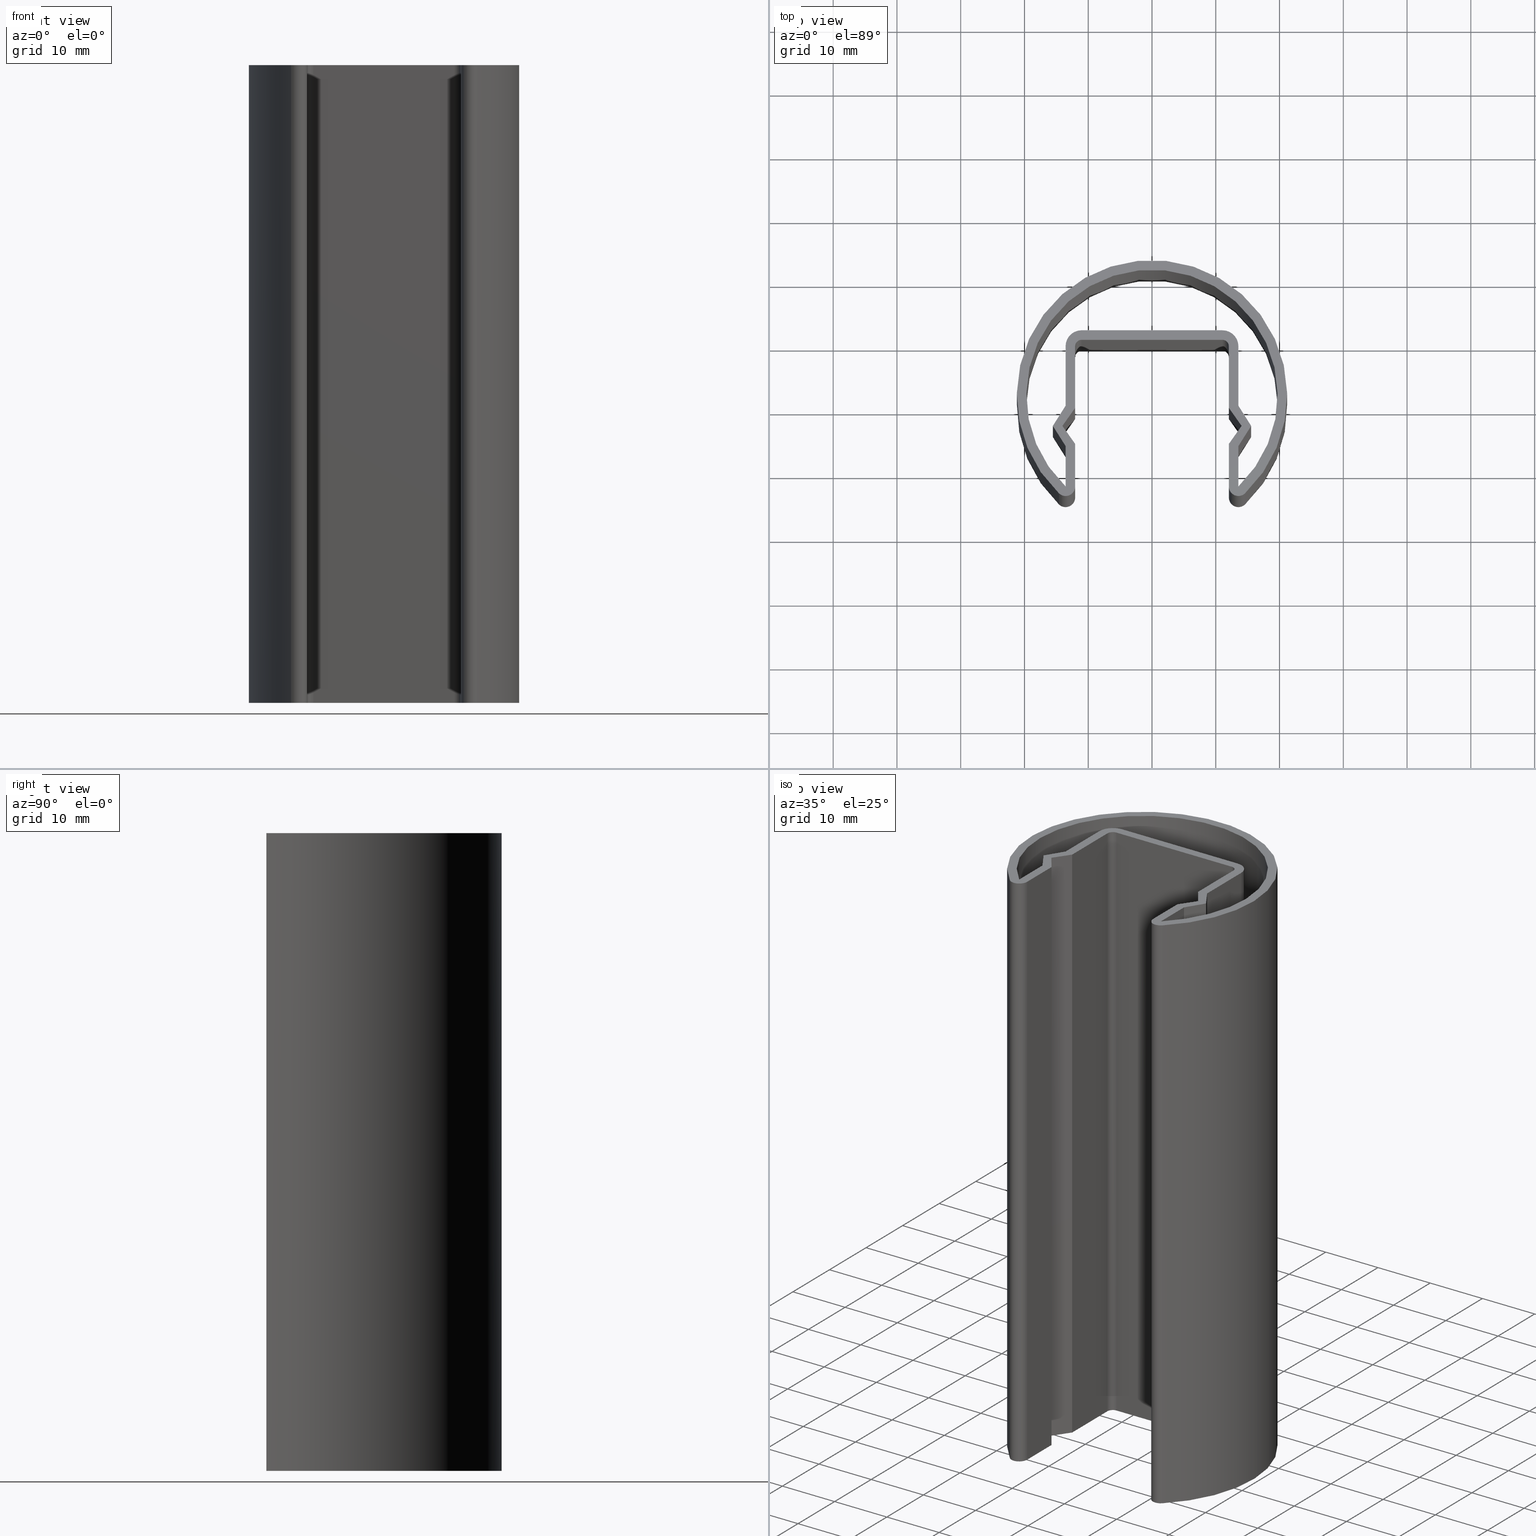
[diagram: canonical four-view strip — front | top / right | iso, engineering-drawing reading convention]
A machine part, canonical four-view strip (front | top / right | iso — engineering-drawing reading convention). The complete STEP part file that produces these views, byte-faithful:
ISO-10303-21;
HEADER;
/* Generated by software containing ST-Developer
 * from STEP Tools, Inc. (www.steptools.com) 
 */
/* OPTION: strings as raw bytes, not using required /X/ escapes */

FILE_DESCRIPTION(
/* description */ ('Unknown'),
/* implementation_level */ '2;1');

FILE_NAME(
/* name */ 'A000003_k',
/* time_stamp */ '2020-06-17T00:15:35+02:00',
/* author */ ('Unknown'),
/* organization */ ('Unknown'),
/* preprocessor_version */ 'ST-DEVELOPER v16.7',
/* originating_system */ 'DEX',
/* authorisation */ $);

FILE_SCHEMA (('CONFIG_CONTROL_DESIGN'));
ENDSEC;

DATA;
#10=PROPERTY_DEFINITION_REPRESENTATION(#14,#12);
#11=PROPERTY_DEFINITION_REPRESENTATION(#15,#13);
#12=REPRESENTATION('',(#16),#931);
#13=REPRESENTATION('',(#17),#931);
#14=PROPERTY_DEFINITION('pmi validation property','',#936);
#15=PROPERTY_DEFINITION('pmi validation property','',#936);
#16=VALUE_REPRESENTATION_ITEM('number of annotations',COUNT_MEASURE(0.));
#17=VALUE_REPRESENTATION_ITEM('number of views',COUNT_MEASURE(0.));
#18=SHAPE_REPRESENTATION_RELATIONSHIP('','',#573,#19);
#19=ADVANCED_BREP_SHAPE_REPRESENTATION('',(#571),#931);
#20=PLANE('',#578);
#21=PLANE('',#579);
#22=PLANE('',#580);
#23=PLANE('',#581);
#24=PLANE('',#585);
#25=PLANE('',#589);
#26=PLANE('',#590);
#27=PLANE('',#591);
#28=PLANE('',#592);
#29=PLANE('',#596);
#30=PLANE('',#597);
#31=PLANE('',#598);
#32=PLANE('',#599);
#33=PLANE('',#603);
#34=PLANE('',#607);
#35=PLANE('',#608);
#36=PLANE('',#609);
#37=PLANE('',#610);
#38=PLANE('',#617);
#39=PLANE('',#618);
#40=LINE('',#776,#102);
#41=LINE('',#780,#103);
#42=LINE('',#782,#104);
#43=LINE('',#784,#105);
#44=LINE('',#786,#106);
#45=LINE('',#788,#107);
#46=LINE('',#790,#108);
#47=LINE('',#792,#109);
#48=LINE('',#794,#110);
#49=LINE('',#796,#111);
#50=LINE('',#798,#112);
#51=LINE('',#800,#113);
#52=LINE('',#802,#114);
#53=LINE('',#804,#115);
#54=LINE('',#808,#116);
#55=LINE('',#812,#117);
#56=LINE('',#814,#118);
#57=LINE('',#816,#119);
#58=LINE('',#820,#120);
#59=LINE('',#824,#121);
#60=LINE('',#826,#122);
#61=LINE('',#828,#123);
#62=LINE('',#830,#124);
#63=LINE('',#832,#125);
#64=LINE('',#834,#126);
#65=LINE('',#836,#127);
#66=LINE('',#838,#128);
#67=LINE('',#840,#129);
#68=LINE('',#842,#130);
#69=LINE('',#844,#131);
#70=LINE('',#846,#132);
#71=LINE('',#850,#133);
#72=LINE('',#854,#134);
#73=LINE('',#857,#135);
#74=LINE('',#859,#136);
#75=LINE('',#861,#137);
#76=LINE('',#863,#138);
#77=LINE('',#865,#139);
#78=LINE('',#867,#140);
#79=LINE('',#869,#141);
#80=LINE('',#871,#142);
#81=LINE('',#873,#143);
#82=LINE('',#875,#144);
#83=LINE('',#877,#145);
#84=LINE('',#879,#146);
#85=LINE('',#883,#147);
#86=LINE('',#887,#148);
#87=LINE('',#889,#149);
#88=LINE('',#891,#150);
#89=LINE('',#895,#151);
#90=LINE('',#899,#152);
#91=LINE('',#901,#153);
#92=LINE('',#903,#154);
#93=LINE('',#905,#155);
#94=LINE('',#907,#156);
#95=LINE('',#909,#157);
#96=LINE('',#911,#158);
#97=LINE('',#913,#159);
#98=LINE('',#915,#160);
#99=LINE('',#917,#161);
#100=LINE('',#919,#162);
#101=LINE('',#921,#163);
#102=VECTOR('',#625,1000.);
#103=VECTOR('',#628,1000.);
#104=VECTOR('',#631,1000.);
#105=VECTOR('',#632,1000.);
#106=VECTOR('',#633,1000.);
#107=VECTOR('',#636,1000.);
#108=VECTOR('',#637,1000.);
#109=VECTOR('',#638,1000.);
#110=VECTOR('',#641,1000.);
#111=VECTOR('',#642,1000.);
#112=VECTOR('',#643,1000.);
#113=VECTOR('',#646,1000.);
#114=VECTOR('',#647,1000.);
#115=VECTOR('',#648,1000.);
#116=VECTOR('',#653,1000.);
#117=VECTOR('',#658,1000.);
#118=VECTOR('',#659,1000.);
#119=VECTOR('',#660,1000.);
#120=VECTOR('',#665,1000.);
#121=VECTOR('',#670,1000.);
#122=VECTOR('',#671,1000.);
#123=VECTOR('',#672,1000.);
#124=VECTOR('',#675,1000.);
#125=VECTOR('',#676,1000.);
#126=VECTOR('',#677,1000.);
#127=VECTOR('',#680,1000.);
#128=VECTOR('',#681,1000.);
#129=VECTOR('',#682,1000.);
#130=VECTOR('',#685,1000.);
#131=VECTOR('',#686,1000.);
#132=VECTOR('',#687,1000.);
#133=VECTOR('',#692,1000.);
#134=VECTOR('',#697,1000.);
#135=VECTOR('',#698,1000.);
#136=VECTOR('',#699,1000.);
#137=VECTOR('',#700,1000.);
#138=VECTOR('',#703,1000.);
#139=VECTOR('',#704,1000.);
#140=VECTOR('',#705,1000.);
#141=VECTOR('',#708,1000.);
#142=VECTOR('',#709,1000.);
#143=VECTOR('',#710,1000.);
#144=VECTOR('',#713,1000.);
#145=VECTOR('',#714,1000.);
#146=VECTOR('',#715,1000.);
#147=VECTOR('',#720,1000.);
#148=VECTOR('',#725,1000.);
#149=VECTOR('',#726,1000.);
#150=VECTOR('',#727,1000.);
#151=VECTOR('',#732,1000.);
#152=VECTOR('',#737,1000.);
#153=VECTOR('',#738,1000.);
#154=VECTOR('',#739,1000.);
#155=VECTOR('',#742,1000.);
#156=VECTOR('',#743,1000.);
#157=VECTOR('',#744,1000.);
#158=VECTOR('',#747,1000.);
#159=VECTOR('',#748,1000.);
#160=VECTOR('',#749,1000.);
#161=VECTOR('',#752,1000.);
#162=VECTOR('',#753,1000.);
#163=VECTOR('',#754,1000.);
#164=ORIENTED_EDGE('',*,*,#320,.T.);
#165=ORIENTED_EDGE('',*,*,#321,.F.);
#166=ORIENTED_EDGE('',*,*,#322,.F.);
#167=ORIENTED_EDGE('',*,*,#323,.T.);
#168=ORIENTED_EDGE('',*,*,#324,.T.);
#169=ORIENTED_EDGE('',*,*,#325,.F.);
#170=ORIENTED_EDGE('',*,*,#326,.F.);
#171=ORIENTED_EDGE('',*,*,#321,.T.);
#172=ORIENTED_EDGE('',*,*,#327,.T.);
#173=ORIENTED_EDGE('',*,*,#328,.F.);
#174=ORIENTED_EDGE('',*,*,#329,.F.);
#175=ORIENTED_EDGE('',*,*,#325,.T.);
#176=ORIENTED_EDGE('',*,*,#330,.T.);
#177=ORIENTED_EDGE('',*,*,#331,.F.);
#178=ORIENTED_EDGE('',*,*,#332,.F.);
#179=ORIENTED_EDGE('',*,*,#328,.T.);
#180=ORIENTED_EDGE('',*,*,#333,.T.);
#181=ORIENTED_EDGE('',*,*,#334,.F.);
#182=ORIENTED_EDGE('',*,*,#335,.F.);
#183=ORIENTED_EDGE('',*,*,#331,.T.);
#184=ORIENTED_EDGE('',*,*,#336,.T.);
#185=ORIENTED_EDGE('',*,*,#337,.F.);
#186=ORIENTED_EDGE('',*,*,#338,.F.);
#187=ORIENTED_EDGE('',*,*,#334,.T.);
#188=ORIENTED_EDGE('',*,*,#339,.T.);
#189=ORIENTED_EDGE('',*,*,#340,.F.);
#190=ORIENTED_EDGE('',*,*,#341,.F.);
#191=ORIENTED_EDGE('',*,*,#337,.T.);
#192=ORIENTED_EDGE('',*,*,#342,.T.);
#193=ORIENTED_EDGE('',*,*,#343,.F.);
#194=ORIENTED_EDGE('',*,*,#344,.F.);
#195=ORIENTED_EDGE('',*,*,#340,.T.);
#196=ORIENTED_EDGE('',*,*,#345,.T.);
#197=ORIENTED_EDGE('',*,*,#346,.F.);
#198=ORIENTED_EDGE('',*,*,#347,.F.);
#199=ORIENTED_EDGE('',*,*,#343,.T.);
#200=ORIENTED_EDGE('',*,*,#348,.T.);
#201=ORIENTED_EDGE('',*,*,#349,.F.);
#202=ORIENTED_EDGE('',*,*,#350,.F.);
#203=ORIENTED_EDGE('',*,*,#346,.T.);
#204=ORIENTED_EDGE('',*,*,#351,.T.);
#205=ORIENTED_EDGE('',*,*,#352,.F.);
#206=ORIENTED_EDGE('',*,*,#353,.F.);
#207=ORIENTED_EDGE('',*,*,#349,.T.);
#208=ORIENTED_EDGE('',*,*,#354,.T.);
#209=ORIENTED_EDGE('',*,*,#355,.F.);
#210=ORIENTED_EDGE('',*,*,#356,.F.);
#211=ORIENTED_EDGE('',*,*,#352,.T.);
#212=ORIENTED_EDGE('',*,*,#357,.T.);
#213=ORIENTED_EDGE('',*,*,#358,.F.);
#214=ORIENTED_EDGE('',*,*,#359,.F.);
#215=ORIENTED_EDGE('',*,*,#355,.T.);
#216=ORIENTED_EDGE('',*,*,#360,.F.);
#217=ORIENTED_EDGE('',*,*,#361,.F.);
#218=ORIENTED_EDGE('',*,*,#362,.T.);
#219=ORIENTED_EDGE('',*,*,#363,.T.);
#220=ORIENTED_EDGE('',*,*,#364,.F.);
#221=ORIENTED_EDGE('',*,*,#365,.F.);
#222=ORIENTED_EDGE('',*,*,#366,.T.);
#223=ORIENTED_EDGE('',*,*,#361,.T.);
#224=ORIENTED_EDGE('',*,*,#367,.F.);
#225=ORIENTED_EDGE('',*,*,#368,.F.);
#226=ORIENTED_EDGE('',*,*,#369,.T.);
#227=ORIENTED_EDGE('',*,*,#365,.T.);
#228=ORIENTED_EDGE('',*,*,#370,.F.);
#229=ORIENTED_EDGE('',*,*,#371,.F.);
#230=ORIENTED_EDGE('',*,*,#372,.T.);
#231=ORIENTED_EDGE('',*,*,#368,.T.);
#232=ORIENTED_EDGE('',*,*,#373,.F.);
#233=ORIENTED_EDGE('',*,*,#374,.F.);
#234=ORIENTED_EDGE('',*,*,#375,.T.);
#235=ORIENTED_EDGE('',*,*,#371,.T.);
#236=ORIENTED_EDGE('',*,*,#376,.F.);
#237=ORIENTED_EDGE('',*,*,#377,.F.);
#238=ORIENTED_EDGE('',*,*,#378,.T.);
#239=ORIENTED_EDGE('',*,*,#374,.T.);
#240=ORIENTED_EDGE('',*,*,#379,.F.);
#241=ORIENTED_EDGE('',*,*,#380,.F.);
#242=ORIENTED_EDGE('',*,*,#381,.T.);
#243=ORIENTED_EDGE('',*,*,#377,.T.);
#244=ORIENTED_EDGE('',*,*,#382,.F.);
#245=ORIENTED_EDGE('',*,*,#383,.F.);
#246=ORIENTED_EDGE('',*,*,#384,.T.);
#247=ORIENTED_EDGE('',*,*,#380,.T.);
#248=ORIENTED_EDGE('',*,*,#385,.F.);
#249=ORIENTED_EDGE('',*,*,#386,.F.);
#250=ORIENTED_EDGE('',*,*,#387,.T.);
#251=ORIENTED_EDGE('',*,*,#383,.T.);
#252=ORIENTED_EDGE('',*,*,#388,.F.);
#253=ORIENTED_EDGE('',*,*,#389,.F.);
#254=ORIENTED_EDGE('',*,*,#390,.T.);
#255=ORIENTED_EDGE('',*,*,#386,.T.);
#256=ORIENTED_EDGE('',*,*,#391,.F.);
#257=ORIENTED_EDGE('',*,*,#392,.F.);
#258=ORIENTED_EDGE('',*,*,#393,.T.);
#259=ORIENTED_EDGE('',*,*,#389,.T.);
#260=ORIENTED_EDGE('',*,*,#394,.F.);
#261=ORIENTED_EDGE('',*,*,#363,.F.);
#262=ORIENTED_EDGE('',*,*,#395,.T.);
#263=ORIENTED_EDGE('',*,*,#392,.T.);
#264=ORIENTED_EDGE('',*,*,#396,.T.);
#265=ORIENTED_EDGE('',*,*,#323,.F.);
#266=ORIENTED_EDGE('',*,*,#397,.F.);
#267=ORIENTED_EDGE('',*,*,#358,.T.);
#268=ORIENTED_EDGE('',*,*,#362,.F.);
#269=ORIENTED_EDGE('',*,*,#366,.F.);
#270=ORIENTED_EDGE('',*,*,#369,.F.);
#271=ORIENTED_EDGE('',*,*,#372,.F.);
#272=ORIENTED_EDGE('',*,*,#375,.F.);
#273=ORIENTED_EDGE('',*,*,#378,.F.);
#274=ORIENTED_EDGE('',*,*,#381,.F.);
#275=ORIENTED_EDGE('',*,*,#384,.F.);
#276=ORIENTED_EDGE('',*,*,#387,.F.);
#277=ORIENTED_EDGE('',*,*,#390,.F.);
#278=ORIENTED_EDGE('',*,*,#393,.F.);
#279=ORIENTED_EDGE('',*,*,#395,.F.);
#280=ORIENTED_EDGE('',*,*,#322,.T.);
#281=ORIENTED_EDGE('',*,*,#326,.T.);
#282=ORIENTED_EDGE('',*,*,#329,.T.);
#283=ORIENTED_EDGE('',*,*,#332,.T.);
#284=ORIENTED_EDGE('',*,*,#335,.T.);
#285=ORIENTED_EDGE('',*,*,#338,.T.);
#286=ORIENTED_EDGE('',*,*,#341,.T.);
#287=ORIENTED_EDGE('',*,*,#344,.T.);
#288=ORIENTED_EDGE('',*,*,#347,.T.);
#289=ORIENTED_EDGE('',*,*,#350,.T.);
#290=ORIENTED_EDGE('',*,*,#353,.T.);
#291=ORIENTED_EDGE('',*,*,#356,.T.);
#292=ORIENTED_EDGE('',*,*,#359,.T.);
#293=ORIENTED_EDGE('',*,*,#397,.T.);
#294=ORIENTED_EDGE('',*,*,#360,.T.);
#295=ORIENTED_EDGE('',*,*,#394,.T.);
#296=ORIENTED_EDGE('',*,*,#391,.T.);
#297=ORIENTED_EDGE('',*,*,#388,.T.);
#298=ORIENTED_EDGE('',*,*,#385,.T.);
#299=ORIENTED_EDGE('',*,*,#382,.T.);
#300=ORIENTED_EDGE('',*,*,#379,.T.);
#301=ORIENTED_EDGE('',*,*,#376,.T.);
#302=ORIENTED_EDGE('',*,*,#373,.T.);
#303=ORIENTED_EDGE('',*,*,#370,.T.);
#304=ORIENTED_EDGE('',*,*,#367,.T.);
#305=ORIENTED_EDGE('',*,*,#364,.T.);
#306=ORIENTED_EDGE('',*,*,#320,.F.);
#307=ORIENTED_EDGE('',*,*,#396,.F.);
#308=ORIENTED_EDGE('',*,*,#357,.F.);
#309=ORIENTED_EDGE('',*,*,#354,.F.);
#310=ORIENTED_EDGE('',*,*,#351,.F.);
#311=ORIENTED_EDGE('',*,*,#348,.F.);
#312=ORIENTED_EDGE('',*,*,#345,.F.);
#313=ORIENTED_EDGE('',*,*,#342,.F.);
#314=ORIENTED_EDGE('',*,*,#339,.F.);
#315=ORIENTED_EDGE('',*,*,#336,.F.);
#316=ORIENTED_EDGE('',*,*,#333,.F.);
#317=ORIENTED_EDGE('',*,*,#330,.F.);
#318=ORIENTED_EDGE('',*,*,#327,.F.);
#319=ORIENTED_EDGE('',*,*,#324,.F.);
#320=EDGE_CURVE('',#398,#399,#450,.T.);
#321=EDGE_CURVE('',#400,#399,#40,.T.);
#322=EDGE_CURVE('',#401,#400,#451,.T.);
#323=EDGE_CURVE('',#401,#398,#41,.T.);
#324=EDGE_CURVE('',#399,#402,#42,.T.);
#325=EDGE_CURVE('',#403,#402,#43,.T.);
#326=EDGE_CURVE('',#400,#403,#44,.T.);
#327=EDGE_CURVE('',#402,#404,#45,.T.);
#328=EDGE_CURVE('',#405,#404,#46,.T.);
#329=EDGE_CURVE('',#403,#405,#47,.T.);
#330=EDGE_CURVE('',#404,#406,#48,.T.);
#331=EDGE_CURVE('',#407,#406,#49,.T.);
#332=EDGE_CURVE('',#405,#407,#50,.T.);
#333=EDGE_CURVE('',#406,#408,#51,.T.);
#334=EDGE_CURVE('',#409,#408,#52,.T.);
#335=EDGE_CURVE('',#407,#409,#53,.T.);
#336=EDGE_CURVE('',#408,#410,#452,.T.);
#337=EDGE_CURVE('',#411,#410,#54,.T.);
#338=EDGE_CURVE('',#409,#411,#453,.T.);
#339=EDGE_CURVE('',#410,#412,#55,.T.);
#340=EDGE_CURVE('',#413,#412,#56,.T.);
#341=EDGE_CURVE('',#411,#413,#57,.T.);
#342=EDGE_CURVE('',#412,#414,#454,.T.);
#343=EDGE_CURVE('',#415,#414,#58,.T.);
#344=EDGE_CURVE('',#413,#415,#455,.T.);
#345=EDGE_CURVE('',#414,#416,#59,.T.);
#346=EDGE_CURVE('',#417,#416,#60,.T.);
#347=EDGE_CURVE('',#415,#417,#61,.T.);
#348=EDGE_CURVE('',#416,#418,#62,.T.);
#349=EDGE_CURVE('',#419,#418,#63,.T.);
#350=EDGE_CURVE('',#417,#419,#64,.T.);
#351=EDGE_CURVE('',#418,#420,#65,.T.);
#352=EDGE_CURVE('',#421,#420,#66,.T.);
#353=EDGE_CURVE('',#419,#421,#67,.T.);
#354=EDGE_CURVE('',#420,#422,#68,.T.);
#355=EDGE_CURVE('',#423,#422,#69,.T.);
#356=EDGE_CURVE('',#421,#423,#70,.T.);
#357=EDGE_CURVE('',#422,#424,#456,.T.);
#358=EDGE_CURVE('',#425,#424,#71,.T.);
#359=EDGE_CURVE('',#423,#425,#457,.T.);
#360=EDGE_CURVE('',#426,#427,#72,.T.);
#361=EDGE_CURVE('',#428,#426,#73,.T.);
#362=EDGE_CURVE('',#428,#429,#74,.T.);
#363=EDGE_CURVE('',#429,#427,#75,.T.);
#364=EDGE_CURVE('',#430,#426,#76,.T.);
#365=EDGE_CURVE('',#431,#430,#77,.T.);
#366=EDGE_CURVE('',#431,#428,#78,.T.);
#367=EDGE_CURVE('',#432,#430,#79,.T.);
#368=EDGE_CURVE('',#433,#432,#80,.T.);
#369=EDGE_CURVE('',#433,#431,#81,.T.);
#370=EDGE_CURVE('',#434,#432,#82,.T.);
#371=EDGE_CURVE('',#435,#434,#83,.T.);
#372=EDGE_CURVE('',#435,#433,#84,.T.);
#373=EDGE_CURVE('',#436,#434,#458,.T.);
#374=EDGE_CURVE('',#437,#436,#85,.T.);
#375=EDGE_CURVE('',#437,#435,#459,.T.);
#376=EDGE_CURVE('',#438,#436,#86,.T.);
#377=EDGE_CURVE('',#439,#438,#87,.T.);
#378=EDGE_CURVE('',#439,#437,#88,.T.);
#379=EDGE_CURVE('',#440,#438,#460,.T.);
#380=EDGE_CURVE('',#441,#440,#89,.T.);
#381=EDGE_CURVE('',#441,#439,#461,.T.);
#382=EDGE_CURVE('',#442,#440,#90,.T.);
#383=EDGE_CURVE('',#443,#442,#91,.T.);
#384=EDGE_CURVE('',#443,#441,#92,.T.);
#385=EDGE_CURVE('',#444,#442,#93,.T.);
#386=EDGE_CURVE('',#445,#444,#94,.T.);
#387=EDGE_CURVE('',#445,#443,#95,.T.);
#388=EDGE_CURVE('',#446,#444,#96,.T.);
#389=EDGE_CURVE('',#447,#446,#97,.T.);
#390=EDGE_CURVE('',#447,#445,#98,.T.);
#391=EDGE_CURVE('',#448,#446,#99,.T.);
#392=EDGE_CURVE('',#449,#448,#100,.T.);
#393=EDGE_CURVE('',#449,#447,#101,.T.);
#394=EDGE_CURVE('',#427,#448,#462,.T.);
#395=EDGE_CURVE('',#429,#449,#463,.T.);
#396=EDGE_CURVE('',#424,#398,#464,.T.);
#397=EDGE_CURVE('',#425,#401,#465,.T.);
#398=VERTEX_POINT('',#774);
#399=VERTEX_POINT('',#775);
#400=VERTEX_POINT('',#777);
#401=VERTEX_POINT('',#779);
#402=VERTEX_POINT('',#783);
#403=VERTEX_POINT('',#785);
#404=VERTEX_POINT('',#789);
#405=VERTEX_POINT('',#791);
#406=VERTEX_POINT('',#795);
#407=VERTEX_POINT('',#797);
#408=VERTEX_POINT('',#801);
#409=VERTEX_POINT('',#803);
#410=VERTEX_POINT('',#807);
#411=VERTEX_POINT('',#809);
#412=VERTEX_POINT('',#813);
#413=VERTEX_POINT('',#815);
#414=VERTEX_POINT('',#819);
#415=VERTEX_POINT('',#821);
#416=VERTEX_POINT('',#825);
#417=VERTEX_POINT('',#827);
#418=VERTEX_POINT('',#831);
#419=VERTEX_POINT('',#833);
#420=VERTEX_POINT('',#837);
#421=VERTEX_POINT('',#839);
#422=VERTEX_POINT('',#843);
#423=VERTEX_POINT('',#845);
#424=VERTEX_POINT('',#849);
#425=VERTEX_POINT('',#851);
#426=VERTEX_POINT('',#855);
#427=VERTEX_POINT('',#856);
#428=VERTEX_POINT('',#858);
#429=VERTEX_POINT('',#860);
#430=VERTEX_POINT('',#864);
#431=VERTEX_POINT('',#866);
#432=VERTEX_POINT('',#870);
#433=VERTEX_POINT('',#872);
#434=VERTEX_POINT('',#876);
#435=VERTEX_POINT('',#878);
#436=VERTEX_POINT('',#882);
#437=VERTEX_POINT('',#884);
#438=VERTEX_POINT('',#888);
#439=VERTEX_POINT('',#890);
#440=VERTEX_POINT('',#894);
#441=VERTEX_POINT('',#896);
#442=VERTEX_POINT('',#900);
#443=VERTEX_POINT('',#902);
#444=VERTEX_POINT('',#906);
#445=VERTEX_POINT('',#908);
#446=VERTEX_POINT('',#912);
#447=VERTEX_POINT('',#914);
#448=VERTEX_POINT('',#918);
#449=VERTEX_POINT('',#920);
#450=CIRCLE('',#576,1.5);
#451=CIRCLE('',#577,1.5);
#452=CIRCLE('',#583,1.);
#453=CIRCLE('',#584,1.);
#454=CIRCLE('',#587,1.);
#455=CIRCLE('',#588,1.);
#456=CIRCLE('',#594,1.5);
#457=CIRCLE('',#595,1.5);
#458=CIRCLE('',#601,2.5);
#459=CIRCLE('',#602,2.5);
#460=CIRCLE('',#605,2.5);
#461=CIRCLE('',#606,2.5);
#462=CIRCLE('',#612,19.7);
#463=CIRCLE('',#613,19.7);
#464=CIRCLE('',#615,21.2);
#465=CIRCLE('',#616,21.2);
#466=EDGE_LOOP('',(#164,#165,#166,#167));
#467=EDGE_LOOP('',(#168,#169,#170,#171));
#468=EDGE_LOOP('',(#172,#173,#174,#175));
#469=EDGE_LOOP('',(#176,#177,#178,#179));
#470=EDGE_LOOP('',(#180,#181,#182,#183));
#471=EDGE_LOOP('',(#184,#185,#186,#187));
#472=EDGE_LOOP('',(#188,#189,#190,#191));
#473=EDGE_LOOP('',(#192,#193,#194,#195));
#474=EDGE_LOOP('',(#196,#197,#198,#199));
#475=EDGE_LOOP('',(#200,#201,#202,#203));
#476=EDGE_LOOP('',(#204,#205,#206,#207));
#477=EDGE_LOOP('',(#208,#209,#210,#211));
#478=EDGE_LOOP('',(#212,#213,#214,#215));
#479=EDGE_LOOP('',(#216,#217,#218,#219));
#480=EDGE_LOOP('',(#220,#221,#222,#223));
#481=EDGE_LOOP('',(#224,#225,#226,#227));
#482=EDGE_LOOP('',(#228,#229,#230,#231));
#483=EDGE_LOOP('',(#232,#233,#234,#235));
#484=EDGE_LOOP('',(#236,#237,#238,#239));
#485=EDGE_LOOP('',(#240,#241,#242,#243));
#486=EDGE_LOOP('',(#244,#245,#246,#247));
#487=EDGE_LOOP('',(#248,#249,#250,#251));
#488=EDGE_LOOP('',(#252,#253,#254,#255));
#489=EDGE_LOOP('',(#256,#257,#258,#259));
#490=EDGE_LOOP('',(#260,#261,#262,#263));
#491=EDGE_LOOP('',(#264,#265,#266,#267));
#492=EDGE_LOOP('',(#268,#269,#270,#271,#272,#273,#274,#275,#276,#277,#278,
#279));
#493=EDGE_LOOP('',(#280,#281,#282,#283,#284,#285,#286,#287,#288,#289,#290,
#291,#292,#293));
#494=EDGE_LOOP('',(#294,#295,#296,#297,#298,#299,#300,#301,#302,#303,#304,
#305));
#495=EDGE_LOOP('',(#306,#307,#308,#309,#310,#311,#312,#313,#314,#315,#316,
#317,#318,#319));
#496=FACE_BOUND('',#466,.T.);
#497=FACE_BOUND('',#467,.T.);
#498=FACE_BOUND('',#468,.T.);
#499=FACE_BOUND('',#469,.T.);
#500=FACE_BOUND('',#470,.T.);
#501=FACE_BOUND('',#471,.T.);
#502=FACE_BOUND('',#472,.T.);
#503=FACE_BOUND('',#473,.T.);
#504=FACE_BOUND('',#474,.T.);
#505=FACE_BOUND('',#475,.T.);
#506=FACE_BOUND('',#476,.T.);
#507=FACE_BOUND('',#477,.T.);
#508=FACE_BOUND('',#478,.T.);
#509=FACE_BOUND('',#479,.T.);
#510=FACE_BOUND('',#480,.T.);
#511=FACE_BOUND('',#481,.T.);
#512=FACE_BOUND('',#482,.T.);
#513=FACE_BOUND('',#483,.T.);
#514=FACE_BOUND('',#484,.T.);
#515=FACE_BOUND('',#485,.T.);
#516=FACE_BOUND('',#486,.T.);
#517=FACE_BOUND('',#487,.T.);
#518=FACE_BOUND('',#488,.T.);
#519=FACE_BOUND('',#489,.T.);
#520=FACE_BOUND('',#490,.T.);
#521=FACE_BOUND('',#491,.T.);
#522=FACE_BOUND('',#492,.T.);
#523=FACE_BOUND('',#493,.T.);
#524=FACE_BOUND('',#494,.T.);
#525=FACE_BOUND('',#495,.T.);
#526=CYLINDRICAL_SURFACE('',#575,1.5);
#527=CYLINDRICAL_SURFACE('',#582,1.);
#528=CYLINDRICAL_SURFACE('',#586,1.);
#529=CYLINDRICAL_SURFACE('',#593,1.5);
#530=CYLINDRICAL_SURFACE('',#600,2.5);
#531=CYLINDRICAL_SURFACE('',#604,2.5);
#532=CYLINDRICAL_SURFACE('',#611,19.7);
#533=CYLINDRICAL_SURFACE('',#614,21.2);
#534=ADVANCED_FACE('',(#496),#526,.T.);
#535=ADVANCED_FACE('',(#497),#20,.F.);
#536=ADVANCED_FACE('',(#498),#21,.F.);
#537=ADVANCED_FACE('',(#499),#22,.F.);
#538=ADVANCED_FACE('',(#500),#23,.F.);
#539=ADVANCED_FACE('',(#501),#527,.F.);
#540=ADVANCED_FACE('',(#502),#24,.F.);
#541=ADVANCED_FACE('',(#503),#528,.F.);
#542=ADVANCED_FACE('',(#504),#25,.F.);
#543=ADVANCED_FACE('',(#505),#26,.F.);
#544=ADVANCED_FACE('',(#506),#27,.F.);
#545=ADVANCED_FACE('',(#507),#28,.F.);
#546=ADVANCED_FACE('',(#508),#529,.T.);
#547=ADVANCED_FACE('',(#509),#29,.T.);
#548=ADVANCED_FACE('',(#510),#30,.T.);
#549=ADVANCED_FACE('',(#511),#31,.T.);
#550=ADVANCED_FACE('',(#512),#32,.T.);
#551=ADVANCED_FACE('',(#513),#530,.T.);
#552=ADVANCED_FACE('',(#514),#33,.T.);
#553=ADVANCED_FACE('',(#515),#531,.T.);
#554=ADVANCED_FACE('',(#516),#34,.T.);
#555=ADVANCED_FACE('',(#517),#35,.T.);
#556=ADVANCED_FACE('',(#518),#36,.T.);
#557=ADVANCED_FACE('',(#519),#37,.T.);
#558=ADVANCED_FACE('',(#520),#532,.F.);
#559=ADVANCED_FACE('',(#521),#533,.T.);
#560=ADVANCED_FACE('',(#522,#523),#38,.T.);
#561=ADVANCED_FACE('',(#524,#525),#39,.F.);
#562=CLOSED_SHELL('',(#534,#535,#536,#537,#538,#539,#540,#541,#542,#543,
#544,#545,#546,#547,#548,#549,#550,#551,#552,#553,#554,#555,#556,#557,#558,
#559,#560,#561));
#563=STYLED_ITEM('',(#564),#571);
#564=PRESENTATION_STYLE_ASSIGNMENT((#565));
#565=SURFACE_STYLE_USAGE(.BOTH.,#566);
#566=SURFACE_SIDE_STYLE('',(#567));
#567=SURFACE_STYLE_FILL_AREA(#568);
#568=FILL_AREA_STYLE('',(#569));
#569=FILL_AREA_STYLE_COLOUR('',#570);
#570=COLOUR_RGB('',0.331739127635956,0.340869575738907,0.349999994039536);
#571=MANIFOLD_SOLID_BREP('',#562);
#572=SHAPE_DEFINITION_REPRESENTATION(#936,#573);
#573=SHAPE_REPRESENTATION('A000003_k',(#574),#931);
#574=AXIS2_PLACEMENT_3D('',#771,#619,#620);
#575=AXIS2_PLACEMENT_3D('',#772,#621,#622);
#576=AXIS2_PLACEMENT_3D('',#773,#623,#624);
#577=AXIS2_PLACEMENT_3D('',#778,#626,#627);
#578=AXIS2_PLACEMENT_3D('',#781,#629,#630);
#579=AXIS2_PLACEMENT_3D('',#787,#634,#635);
#580=AXIS2_PLACEMENT_3D('',#793,#639,#640);
#581=AXIS2_PLACEMENT_3D('',#799,#644,#645);
#582=AXIS2_PLACEMENT_3D('',#805,#649,#650);
#583=AXIS2_PLACEMENT_3D('',#806,#651,#652);
#584=AXIS2_PLACEMENT_3D('',#810,#654,#655);
#585=AXIS2_PLACEMENT_3D('',#811,#656,#657);
#586=AXIS2_PLACEMENT_3D('',#817,#661,#662);
#587=AXIS2_PLACEMENT_3D('',#818,#663,#664);
#588=AXIS2_PLACEMENT_3D('',#822,#666,#667);
#589=AXIS2_PLACEMENT_3D('',#823,#668,#669);
#590=AXIS2_PLACEMENT_3D('',#829,#673,#674);
#591=AXIS2_PLACEMENT_3D('',#835,#678,#679);
#592=AXIS2_PLACEMENT_3D('',#841,#683,#684);
#593=AXIS2_PLACEMENT_3D('',#847,#688,#689);
#594=AXIS2_PLACEMENT_3D('',#848,#690,#691);
#595=AXIS2_PLACEMENT_3D('',#852,#693,#694);
#596=AXIS2_PLACEMENT_3D('',#853,#695,#696);
#597=AXIS2_PLACEMENT_3D('',#862,#701,#702);
#598=AXIS2_PLACEMENT_3D('',#868,#706,#707);
#599=AXIS2_PLACEMENT_3D('',#874,#711,#712);
#600=AXIS2_PLACEMENT_3D('',#880,#716,#717);
#601=AXIS2_PLACEMENT_3D('',#881,#718,#719);
#602=AXIS2_PLACEMENT_3D('',#885,#721,#722);
#603=AXIS2_PLACEMENT_3D('',#886,#723,#724);
#604=AXIS2_PLACEMENT_3D('',#892,#728,#729);
#605=AXIS2_PLACEMENT_3D('',#893,#730,#731);
#606=AXIS2_PLACEMENT_3D('',#897,#733,#734);
#607=AXIS2_PLACEMENT_3D('',#898,#735,#736);
#608=AXIS2_PLACEMENT_3D('',#904,#740,#741);
#609=AXIS2_PLACEMENT_3D('',#910,#745,#746);
#610=AXIS2_PLACEMENT_3D('',#916,#750,#751);
#611=AXIS2_PLACEMENT_3D('',#922,#755,#756);
#612=AXIS2_PLACEMENT_3D('',#923,#757,#758);
#613=AXIS2_PLACEMENT_3D('',#924,#759,#760);
#614=AXIS2_PLACEMENT_3D('',#925,#761,#762);
#615=AXIS2_PLACEMENT_3D('',#926,#763,#764);
#616=AXIS2_PLACEMENT_3D('',#927,#765,#766);
#617=AXIS2_PLACEMENT_3D('',#928,#767,#768);
#618=AXIS2_PLACEMENT_3D('',#929,#769,#770);
#619=DIRECTION('',(0.,0.,1.));
#620=DIRECTION('',(1.,0.,0.));
#621=DIRECTION('',(0.,0.,-1.));
#622=DIRECTION('',(-1.,0.,0.));
#623=DIRECTION('',(0.,0.,1.));
#624=DIRECTION('',(-1.,0.,0.));
#625=DIRECTION('',(0.,0.,-1.));
#626=DIRECTION('',(0.,0.,1.));
#627=DIRECTION('',(-1.,0.,0.));
#628=DIRECTION('',(0.,0.,-1.));
#629=DIRECTION('',(-1.,-1.04526900984522E-13,0.));
#630=DIRECTION('',(1.04526900984522E-13,-1.,0.));
#631=DIRECTION('',(-1.04526900984522E-13,1.,0.));
#632=DIRECTION('',(0.,0.,-1.));
#633=DIRECTION('',(-1.04526900984522E-13,1.,0.));
#634=DIRECTION('',(-0.816496580927821,-0.577350269189492,0.));
#635=DIRECTION('',(0.577350269189492,-0.816496580927821,0.));
#636=DIRECTION('',(-0.577350269189492,0.816496580927821,0.));
#637=DIRECTION('',(0.,0.,-1.));
#638=DIRECTION('',(-0.577350269189492,0.816496580927821,0.));
#639=DIRECTION('',(-0.816496580927822,0.577350269189491,0.));
#640=DIRECTION('',(-0.57735026918949,-0.816496580927822,0.));
#641=DIRECTION('',(0.577350269189491,0.816496580927822,0.));
#642=DIRECTION('',(0.,0.,-1.));
#643=DIRECTION('',(0.577350269189491,0.816496580927822,0.));
#644=DIRECTION('',(-1.,-3.58726237883263E-16,0.));
#645=DIRECTION('',(3.58726237883263E-16,-1.,0.));
#646=DIRECTION('',(-3.58726237883263E-16,1.,0.));
#647=DIRECTION('',(0.,0.,-1.));
#648=DIRECTION('',(-3.58726237883263E-16,1.,0.));
#649=DIRECTION('',(0.,0.,-1.));
#650=DIRECTION('',(-1.,0.,0.));
#651=DIRECTION('',(0.,0.,-1.));
#652=DIRECTION('',(1.,0.,0.));
#653=DIRECTION('',(0.,0.,-1.));
#654=DIRECTION('',(0.,0.,-1.));
#655=DIRECTION('',(1.,0.,0.));
#656=DIRECTION('',(7.84942749310747E-17,1.,0.));
#657=DIRECTION('',(-1.,7.84942749310747E-17,0.));
#658=DIRECTION('',(1.,-7.84942749310747E-17,0.));
#659=DIRECTION('',(0.,0.,-1.));
#660=DIRECTION('',(1.,-7.84942749310747E-17,0.));
#661=DIRECTION('',(0.,0.,-1.));
#662=DIRECTION('',(-1.,0.,0.));
#663=DIRECTION('',(0.,0.,-1.));
#664=DIRECTION('',(-1.,0.,0.));
#665=DIRECTION('',(0.,0.,-1.));
#666=DIRECTION('',(0.,0.,-1.));
#667=DIRECTION('',(-1.,0.,0.));
#668=DIRECTION('',(1.,7.33595156471255E-14,0.));
#669=DIRECTION('',(-7.33595156471255E-14,1.,0.));
#670=DIRECTION('',(7.33595156471255E-14,-1.,0.));
#671=DIRECTION('',(0.,0.,-1.));
#672=DIRECTION('',(7.33595156471255E-14,-1.,0.));
#673=DIRECTION('',(0.816496580927784,0.577350269189544,0.));
#674=DIRECTION('',(-0.577350269189544,0.816496580927784,0.));
#675=DIRECTION('',(0.577350269189544,-0.816496580927784,0.));
#676=DIRECTION('',(0.,0.,-1.));
#677=DIRECTION('',(0.577350269189544,-0.816496580927784,0.));
#678=DIRECTION('',(0.816496580927733,-0.577350269189616,0.));
#679=DIRECTION('',(0.577350269189616,0.816496580927733,0.));
#680=DIRECTION('',(-0.577350269189616,-0.816496580927733,0.));
#681=DIRECTION('',(0.,0.,-1.));
#682=DIRECTION('',(-0.577350269189616,-0.816496580927733,0.));
#683=DIRECTION('',(1.,5.20034333256328E-16,0.));
#684=DIRECTION('',(-5.20034333256328E-16,1.,0.));
#685=DIRECTION('',(5.20034333256328E-16,-1.,0.));
#686=DIRECTION('',(0.,0.,-1.));
#687=DIRECTION('',(5.20034333256328E-16,-1.,0.));
#688=DIRECTION('',(0.,0.,-1.));
#689=DIRECTION('',(-1.,0.,0.));
#690=DIRECTION('',(0.,0.,1.));
#691=DIRECTION('',(1.,0.,0.));
#692=DIRECTION('',(0.,0.,-1.));
#693=DIRECTION('',(0.,0.,1.));
#694=DIRECTION('',(1.,0.,0.));
#695=DIRECTION('',(1.,-1.36857011317329E-15,0.));
#696=DIRECTION('',(1.36857011317329E-15,1.,0.));
#697=DIRECTION('',(-1.36857011317329E-15,-1.,0.));
#698=DIRECTION('',(0.,0.,-1.));
#699=DIRECTION('',(-1.36857011317329E-15,-1.,0.));
#700=DIRECTION('',(0.,0.,-1.));
#701=DIRECTION('',(0.845154254728545,-0.534522483824804,0.));
#702=DIRECTION('',(0.534522483824804,0.845154254728545,0.));
#703=DIRECTION('',(-0.534522483824804,-0.845154254728545,0.));
#704=DIRECTION('',(0.,0.,-1.));
#705=DIRECTION('',(-0.534522483824804,-0.845154254728545,0.));
#706=DIRECTION('',(0.845154254728546,0.534522483824803,0.));
#707=DIRECTION('',(-0.534522483824803,0.845154254728546,0.));
#708=DIRECTION('',(0.534522483824803,-0.845154254728546,0.));
#709=DIRECTION('',(0.,0.,-1.));
#710=DIRECTION('',(0.534522483824803,-0.845154254728546,0.));
#711=DIRECTION('',(1.,-5.57327605012527E-16,0.));
#712=DIRECTION('',(5.57327605012527E-16,1.,0.));
#713=DIRECTION('',(-5.57327605012527E-16,-1.,0.));
#714=DIRECTION('',(0.,0.,-1.));
#715=DIRECTION('',(-5.57327605012527E-16,-1.,0.));
#716=DIRECTION('',(0.,0.,-1.));
#717=DIRECTION('',(-1.,0.,0.));
#718=DIRECTION('',(0.,0.,-1.));
#719=DIRECTION('',(-1.,0.,0.));
#720=DIRECTION('',(0.,0.,-1.));
#721=DIRECTION('',(0.,0.,-1.));
#722=DIRECTION('',(-1.,0.,0.));
#723=DIRECTION('',(7.84942749310759E-17,1.,0.));
#724=DIRECTION('',(-1.,7.84942749310759E-17,0.));
#725=DIRECTION('',(1.,-7.84942749310759E-17,0.));
#726=DIRECTION('',(0.,0.,-1.));
#727=DIRECTION('',(1.,-7.84942749310759E-17,0.));
#728=DIRECTION('',(0.,0.,-1.));
#729=DIRECTION('',(-1.,0.,0.));
#730=DIRECTION('',(0.,0.,-1.));
#731=DIRECTION('',(1.,0.,0.));
#732=DIRECTION('',(0.,0.,-1.));
#733=DIRECTION('',(0.,0.,-1.));
#734=DIRECTION('',(1.,0.,0.));
#735=DIRECTION('',(-1.,-1.85775868337512E-16,0.));
#736=DIRECTION('',(1.85775868337512E-16,-1.,0.));
#737=DIRECTION('',(-1.85775868337512E-16,1.,0.));
#738=DIRECTION('',(0.,0.,-1.));
#739=DIRECTION('',(-1.85775868337512E-16,1.,0.));
#740=DIRECTION('',(-0.845154254728517,0.534522483824848,0.));
#741=DIRECTION('',(-0.534522483824848,-0.845154254728517,0.));
#742=DIRECTION('',(0.534522483824848,0.845154254728517,0.));
#743=DIRECTION('',(0.,0.,-1.));
#744=DIRECTION('',(0.534522483824848,0.845154254728517,0.));
#745=DIRECTION('',(-0.845154254728517,-0.534522483824848,0.));
#746=DIRECTION('',(0.534522483824848,-0.845154254728517,0.));
#747=DIRECTION('',(-0.534522483824848,0.845154254728517,0.));
#748=DIRECTION('',(0.,0.,-1.));
#749=DIRECTION('',(-0.534522483824848,0.845154254728517,0.));
#750=DIRECTION('',(-1.,2.73714022634651E-16,0.));
#751=DIRECTION('',(-2.73714022634651E-16,-1.,0.));
#752=DIRECTION('',(2.73714022634651E-16,1.,0.));
#753=DIRECTION('',(0.,0.,-1.));
#754=DIRECTION('',(2.73714022634651E-16,1.,0.));
#755=DIRECTION('',(0.,0.,-1.));
#756=DIRECTION('',(-1.,0.,0.));
#757=DIRECTION('',(0.,0.,1.));
#758=DIRECTION('',(0.,-1.,0.));
#759=DIRECTION('',(0.,0.,1.));
#760=DIRECTION('',(0.,-1.,0.));
#761=DIRECTION('',(0.,0.,-1.));
#762=DIRECTION('',(-1.,0.,0.));
#763=DIRECTION('',(0.,0.,1.));
#764=DIRECTION('',(0.,-1.,0.));
#765=DIRECTION('',(0.,0.,1.));
#766=DIRECTION('',(0.,-1.,0.));
#767=DIRECTION('',(0.,0.,1.));
#768=DIRECTION('',(1.,0.,0.));
#769=DIRECTION('',(0.,0.,1.));
#770=DIRECTION('',(1.,0.,0.));
#771=CARTESIAN_POINT('',(0.,0.,0.));
#772=CARTESIAN_POINT('',(-13.5499999999997,-23.,50.));
#773=CARTESIAN_POINT('',(-13.5499999999997,-23.,-50.));
#774=CARTESIAN_POINT('',(-14.5817258883245,-24.0888258315085,-50.));
#775=CARTESIAN_POINT('',(-12.0499999999997,-23.,-50.));
#776=CARTESIAN_POINT('',(-12.0499999999997,-23.,50.));
#777=CARTESIAN_POINT('',(-12.0499999999997,-23.,50.));
#778=CARTESIAN_POINT('',(-13.5499999999997,-23.,50.));
#779=CARTESIAN_POINT('',(-14.5817258883245,-24.0888258315085,50.));
#780=CARTESIAN_POINT('',(-14.5817258883245,-24.0888258315085,50.));
#781=CARTESIAN_POINT('',(-12.0499999999997,-23.,50.));
#782=CARTESIAN_POINT('',(-12.0499999999997,-23.,-50.));
#783=CARTESIAN_POINT('',(-12.0500000000003,-16.3284271247462,-50.));
#784=CARTESIAN_POINT('',(-12.0500000000003,-16.3284271247462,50.));
#785=CARTESIAN_POINT('',(-12.0500000000003,-16.3284271247462,50.));
#786=CARTESIAN_POINT('',(-12.0499999999997,-23.,50.));
#787=CARTESIAN_POINT('',(-14.0499999999996,-13.5,50.));
#788=CARTESIAN_POINT('',(-14.0499999999996,-13.5,-50.));
#789=CARTESIAN_POINT('',(-14.0499999999996,-13.5,-50.));
#790=CARTESIAN_POINT('',(-14.0499999999996,-13.5,50.));
#791=CARTESIAN_POINT('',(-14.0499999999996,-13.5,50.));
#792=CARTESIAN_POINT('',(-14.0499999999996,-13.5,50.));
#793=CARTESIAN_POINT('',(-12.0500000000004,-10.6715728752538,50.));
#794=CARTESIAN_POINT('',(-12.0500000000004,-10.6715728752538,-50.));
#795=CARTESIAN_POINT('',(-12.0500000000004,-10.6715728752538,-50.));
#796=CARTESIAN_POINT('',(-12.0500000000004,-10.6715728752538,50.));
#797=CARTESIAN_POINT('',(-12.0500000000004,-10.6715728752538,50.));
#798=CARTESIAN_POINT('',(-12.0500000000004,-10.6715728752538,50.));
#799=CARTESIAN_POINT('',(-12.0500000000004,-10.6715728752538,50.));
#800=CARTESIAN_POINT('',(-12.0500000000004,-10.6715728752538,-50.));
#801=CARTESIAN_POINT('',(-12.0500000000004,-1.,-50.));
#802=CARTESIAN_POINT('',(-12.0500000000004,-1.,50.));
#803=CARTESIAN_POINT('',(-12.0500000000004,-1.,50.));
#804=CARTESIAN_POINT('',(-12.0500000000004,-10.6715728752538,50.));
#805=CARTESIAN_POINT('',(-11.0500000000004,-1.,50.));
#806=CARTESIAN_POINT('',(-11.0500000000004,-1.,-50.));
#807=CARTESIAN_POINT('',(-11.0500000000004,-8.67361737988404E-16,-50.));
#808=CARTESIAN_POINT('',(-11.0500000000004,-8.67361737988404E-16,50.));
#809=CARTESIAN_POINT('',(-11.0500000000004,-8.67361737988404E-16,50.));
#810=CARTESIAN_POINT('',(-11.0500000000004,-1.,50.));
#811=CARTESIAN_POINT('',(-11.0500000000004,0.,50.));
#812=CARTESIAN_POINT('',(-11.0500000000004,0.,-50.));
#813=CARTESIAN_POINT('',(11.0500000000004,-1.73472347597681E-15,-50.));
#814=CARTESIAN_POINT('',(11.0500000000004,-1.73472347597681E-15,50.));
#815=CARTESIAN_POINT('',(11.0500000000004,-1.73472347597681E-15,50.));
#816=CARTESIAN_POINT('',(-11.0500000000004,0.,50.));
#817=CARTESIAN_POINT('',(11.0500000000004,-1.,50.));
#818=CARTESIAN_POINT('',(11.0500000000004,-1.,-50.));
#819=CARTESIAN_POINT('',(12.0500000000004,-1.,-50.));
#820=CARTESIAN_POINT('',(12.0500000000004,-1.,50.));
#821=CARTESIAN_POINT('',(12.0500000000004,-1.,50.));
#822=CARTESIAN_POINT('',(11.0500000000004,-1.,50.));
#823=CARTESIAN_POINT('',(12.0500000000004,-1.,50.));
#824=CARTESIAN_POINT('',(12.0500000000004,-1.,-50.));
#825=CARTESIAN_POINT('',(12.0500000000011,-10.6715728752541,-50.));
#826=CARTESIAN_POINT('',(12.0500000000011,-10.6715728752541,50.));
#827=CARTESIAN_POINT('',(12.0500000000011,-10.6715728752541,50.));
#828=CARTESIAN_POINT('',(12.0500000000004,-1.,50.));
#829=CARTESIAN_POINT('',(12.0500000000011,-10.6715728752541,50.));
#830=CARTESIAN_POINT('',(12.0500000000011,-10.6715728752541,-50.));
#831=CARTESIAN_POINT('',(14.0500000000004,-13.4999999999999,-50.));
#832=CARTESIAN_POINT('',(14.0500000000004,-13.4999999999999,50.));
#833=CARTESIAN_POINT('',(14.0500000000004,-13.4999999999999,50.));
#834=CARTESIAN_POINT('',(12.0500000000011,-10.6715728752541,50.));
#835=CARTESIAN_POINT('',(14.0500000000004,-13.4999999999999,50.));
#836=CARTESIAN_POINT('',(14.0500000000004,-13.4999999999999,-50.));
#837=CARTESIAN_POINT('',(12.0500000000004,-16.3284271247462,-50.));
#838=CARTESIAN_POINT('',(12.0500000000004,-16.3284271247462,50.));
#839=CARTESIAN_POINT('',(12.0500000000004,-16.3284271247462,50.));
#840=CARTESIAN_POINT('',(14.0500000000004,-13.4999999999999,50.));
#841=CARTESIAN_POINT('',(12.0500000000004,-16.3284271247462,50.));
#842=CARTESIAN_POINT('',(12.0500000000004,-16.3284271247462,-50.));
#843=CARTESIAN_POINT('',(12.0500000000004,-23.,-50.));
#844=CARTESIAN_POINT('',(12.0500000000004,-23.,50.));
#845=CARTESIAN_POINT('',(12.0500000000004,-23.,50.));
#846=CARTESIAN_POINT('',(12.0500000000004,-16.3284271247462,50.));
#847=CARTESIAN_POINT('',(13.5500000000004,-23.,50.));
#848=CARTESIAN_POINT('',(13.5500000000004,-23.,-50.));
#849=CARTESIAN_POINT('',(14.5817258883252,-24.0888258315085,-50.));
#850=CARTESIAN_POINT('',(14.5817258883252,-24.0888258315085,50.));
#851=CARTESIAN_POINT('',(14.5817258883252,-24.0888258315085,50.));
#852=CARTESIAN_POINT('',(13.5500000000004,-23.,50.));
#853=CARTESIAN_POINT('',(13.5500000000007,-16.6622776601682,50.));
#854=CARTESIAN_POINT('',(13.5500000000007,-16.6622776601682,-50.));
#855=CARTESIAN_POINT('',(13.5500000000007,-16.6622776601682,-50.));
#856=CARTESIAN_POINT('',(13.5500000000007,-22.9999999999997,-50.));
#857=CARTESIAN_POINT('',(13.5500000000007,-16.6622776601682,50.));
#858=CARTESIAN_POINT('',(13.5500000000007,-16.6622776601682,50.));
#859=CARTESIAN_POINT('',(13.5500000000007,-16.6622776601682,50.));
#860=CARTESIAN_POINT('',(13.5500000000007,-22.9999999999997,50.));
#861=CARTESIAN_POINT('',(13.5500000000007,-22.9999999999997,50.));
#862=CARTESIAN_POINT('',(15.5500000000004,-13.5,50.));
#863=CARTESIAN_POINT('',(15.5500000000004,-13.5,-50.));
#864=CARTESIAN_POINT('',(15.5500000000004,-13.5,-50.));
#865=CARTESIAN_POINT('',(15.5500000000004,-13.5,50.));
#866=CARTESIAN_POINT('',(15.5500000000004,-13.5,50.));
#867=CARTESIAN_POINT('',(15.5500000000004,-13.5,50.));
#868=CARTESIAN_POINT('',(13.5500000000007,-10.3377223398318,50.));
#869=CARTESIAN_POINT('',(13.5500000000007,-10.3377223398318,-50.));
#870=CARTESIAN_POINT('',(13.5500000000007,-10.3377223398318,-50.));
#871=CARTESIAN_POINT('',(13.5500000000007,-10.3377223398318,50.));
#872=CARTESIAN_POINT('',(13.5500000000007,-10.3377223398318,50.));
#873=CARTESIAN_POINT('',(13.5500000000007,-10.3377223398318,50.));
#874=CARTESIAN_POINT('',(13.5500000000007,-1.,50.));
#875=CARTESIAN_POINT('',(13.5500000000007,-1.,-50.));
#876=CARTESIAN_POINT('',(13.5500000000007,-1.,-50.));
#877=CARTESIAN_POINT('',(13.5500000000007,-1.,50.));
#878=CARTESIAN_POINT('',(13.5500000000007,-1.,50.));
#879=CARTESIAN_POINT('',(13.5500000000007,-1.,50.));
#880=CARTESIAN_POINT('',(11.0500000000007,-1.,50.));
#881=CARTESIAN_POINT('',(11.0500000000007,-1.,-50.));
#882=CARTESIAN_POINT('',(11.0500000000007,1.5,-50.));
#883=CARTESIAN_POINT('',(11.0500000000007,1.5,50.));
#884=CARTESIAN_POINT('',(11.0500000000007,1.5,50.));
#885=CARTESIAN_POINT('',(11.0500000000007,-1.,50.));
#886=CARTESIAN_POINT('',(-11.0499999999997,1.5,50.));
#887=CARTESIAN_POINT('',(-11.0499999999997,1.5,-50.));
#888=CARTESIAN_POINT('',(-11.0499999999997,1.5,-50.));
#889=CARTESIAN_POINT('',(-11.0499999999997,1.5,50.));
#890=CARTESIAN_POINT('',(-11.0499999999997,1.5,50.));
#891=CARTESIAN_POINT('',(-11.0499999999997,1.5,50.));
#892=CARTESIAN_POINT('',(-11.0499999999997,-1.,50.));
#893=CARTESIAN_POINT('',(-11.0499999999997,-1.,-50.));
#894=CARTESIAN_POINT('',(-13.5499999999996,-0.999999999999989,-50.));
#895=CARTESIAN_POINT('',(-13.5499999999996,-0.999999999999989,50.));
#896=CARTESIAN_POINT('',(-13.5499999999996,-0.999999999999989,50.));
#897=CARTESIAN_POINT('',(-11.0499999999997,-1.,50.));
#898=CARTESIAN_POINT('',(-13.5499999999996,-10.3377223398316,50.));
#899=CARTESIAN_POINT('',(-13.5499999999996,-10.3377223398316,-50.));
#900=CARTESIAN_POINT('',(-13.5499999999996,-10.3377223398316,-50.));
#901=CARTESIAN_POINT('',(-13.5499999999996,-10.3377223398316,50.));
#902=CARTESIAN_POINT('',(-13.5499999999996,-10.3377223398316,50.));
#903=CARTESIAN_POINT('',(-13.5499999999996,-10.3377223398316,50.));
#904=CARTESIAN_POINT('',(-13.5499999999996,-10.3377223398316,50.));
#905=CARTESIAN_POINT('',(-13.5499999999996,-10.3377223398316,-50.));
#906=CARTESIAN_POINT('',(-15.5499999999996,-13.5,-50.));
#907=CARTESIAN_POINT('',(-15.5499999999996,-13.5,50.));
#908=CARTESIAN_POINT('',(-15.5499999999996,-13.5,50.));
#909=CARTESIAN_POINT('',(-13.5499999999996,-10.3377223398316,50.));
#910=CARTESIAN_POINT('',(-15.5499999999996,-13.5,50.));
#911=CARTESIAN_POINT('',(-15.5499999999996,-13.5,-50.));
#912=CARTESIAN_POINT('',(-13.5499999999997,-16.6622776601684,-50.));
#913=CARTESIAN_POINT('',(-13.5499999999997,-16.6622776601684,50.));
#914=CARTESIAN_POINT('',(-13.5499999999997,-16.6622776601684,50.));
#915=CARTESIAN_POINT('',(-15.5499999999996,-13.5,50.));
#916=CARTESIAN_POINT('',(-13.5499999999997,-23.,50.));
#917=CARTESIAN_POINT('',(-13.5499999999997,-23.,-50.));
#918=CARTESIAN_POINT('',(-13.5499999999997,-23.,-50.));
#919=CARTESIAN_POINT('',(-13.5499999999997,-23.,50.));
#920=CARTESIAN_POINT('',(-13.5499999999997,-23.,50.));
#921=CARTESIAN_POINT('',(-13.5499999999997,-23.,50.));
#922=CARTESIAN_POINT('',(3.53883589099269E-13,-8.70008741285458,50.));
#923=CARTESIAN_POINT('',(3.53883589099269E-13,-8.70008741285458,-50.));
#924=CARTESIAN_POINT('',(3.53883589099269E-13,-8.70008741285458,50.));
#925=CARTESIAN_POINT('',(3.53883589099269E-13,-8.70008741285458,50.));
#926=CARTESIAN_POINT('',(3.53883589099269E-13,-8.70008741285458,-50.));
#927=CARTESIAN_POINT('',(3.53883589099269E-13,-8.70008741285458,50.));
#928=CARTESIAN_POINT('',(-13.5499999999997,-23.,50.));
#929=CARTESIAN_POINT('',(-13.5499999999997,-23.,-50.));
#930=MECHANICAL_DESIGN_GEOMETRIC_PRESENTATION_REPRESENTATION('',(#563),
#931);
#931=(
GEOMETRIC_REPRESENTATION_CONTEXT(3)
GLOBAL_UNCERTAINTY_ASSIGNED_CONTEXT((#932))
GLOBAL_UNIT_ASSIGNED_CONTEXT((#935,#934,#933))
REPRESENTATION_CONTEXT('A000003_k','TOP_LEVEL_ASSEMBLY_PART')
);
#932=UNCERTAINTY_MEASURE_WITH_UNIT(LENGTH_MEASURE(0.005),#935,
'DISTANCE_ACCURACY_VALUE','Maximum Tolerance applied to model');
#933=(
NAMED_UNIT(*)
SI_UNIT($,.STERADIAN.)
SOLID_ANGLE_UNIT()
);
#934=(
NAMED_UNIT(*)
PLANE_ANGLE_UNIT()
SI_UNIT($,.RADIAN.)
);
#935=(
LENGTH_UNIT()
NAMED_UNIT(*)
SI_UNIT(.MILLI.,.METRE.)
);
#936=PRODUCT_DEFINITION_SHAPE('','',#937);
#937=PRODUCT_DEFINITION('','',#939,#938);
#938=DESIGN_CONTEXT('',#945,'design');
#939=PRODUCT_DEFINITION_FORMATION_WITH_SPECIFIED_SOURCE('','',#941,
 .NOT_KNOWN.);
#940=PRODUCT_RELATED_PRODUCT_CATEGORY('','',(#941));
#941=PRODUCT('A000003_k','A000003_k','A000003_k',(#943));
#942=PRODUCT_CATEGORY('','');
#943=MECHANICAL_CONTEXT('',#945,'mechanical');
#944=APPLICATION_PROTOCOL_DEFINITION('international standard',
'config_control_design',2010,#945);
#945=APPLICATION_CONTEXT(
'configuration controlled 3D designs of mechanical parts and assemblie
s');
ENDSEC;
END-ISO-10303-21;
